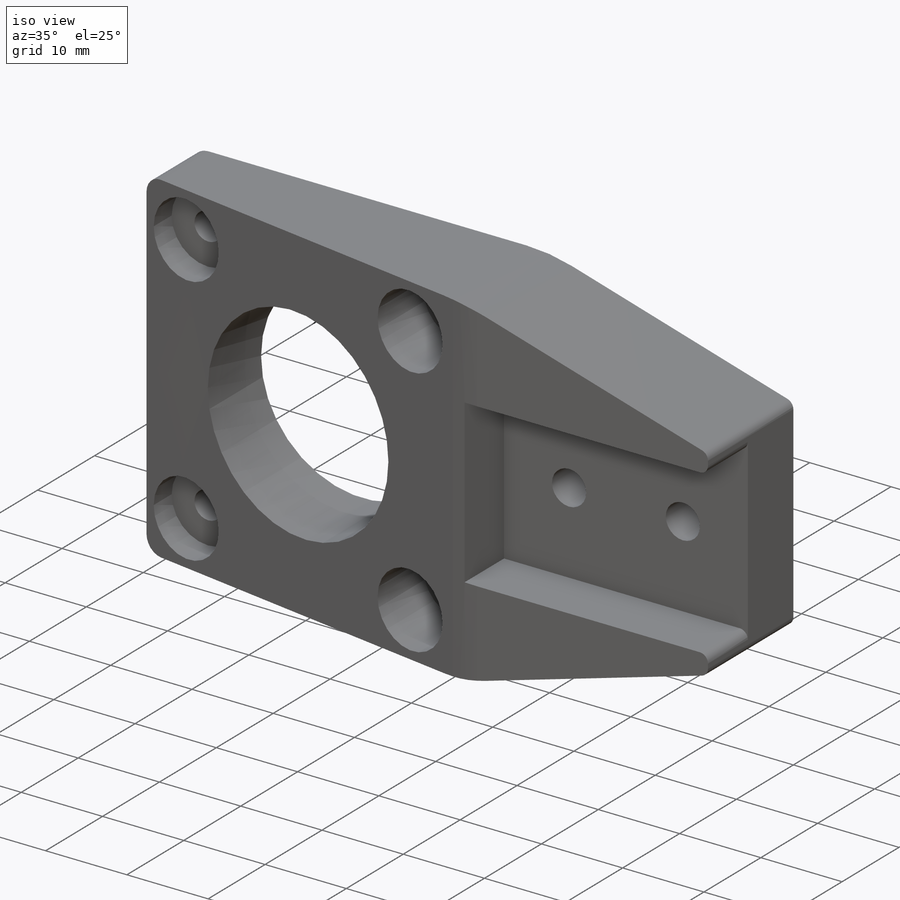
[diagram: iso view]
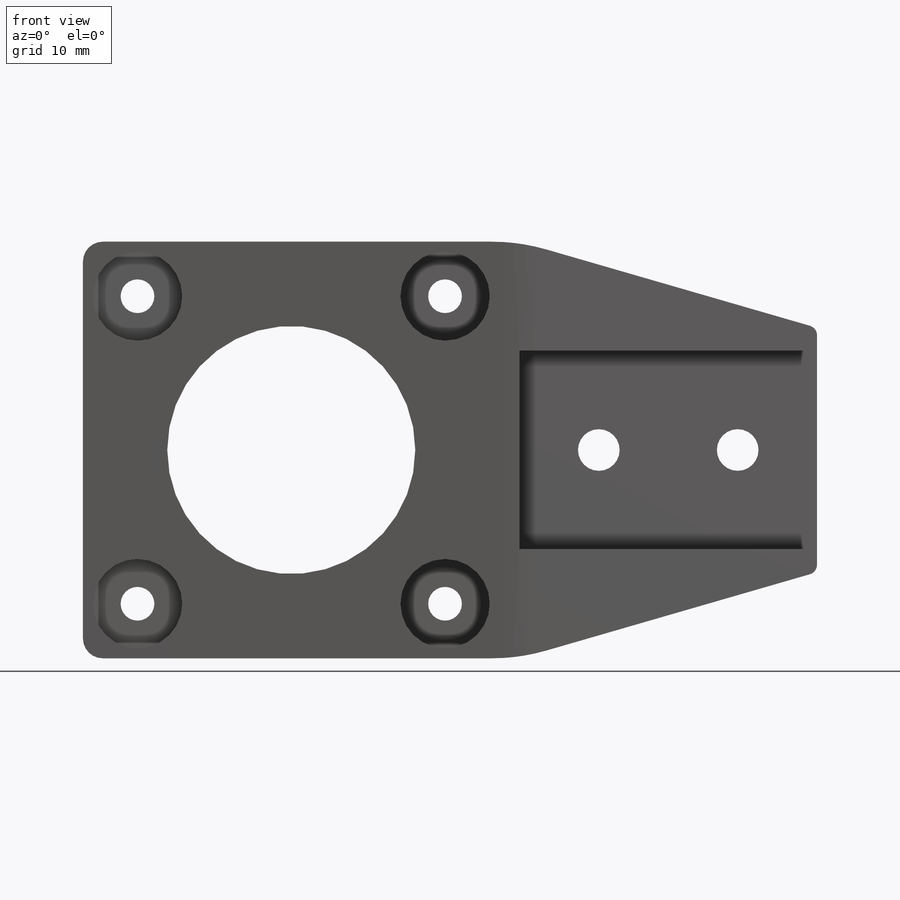
[diagram: front view]
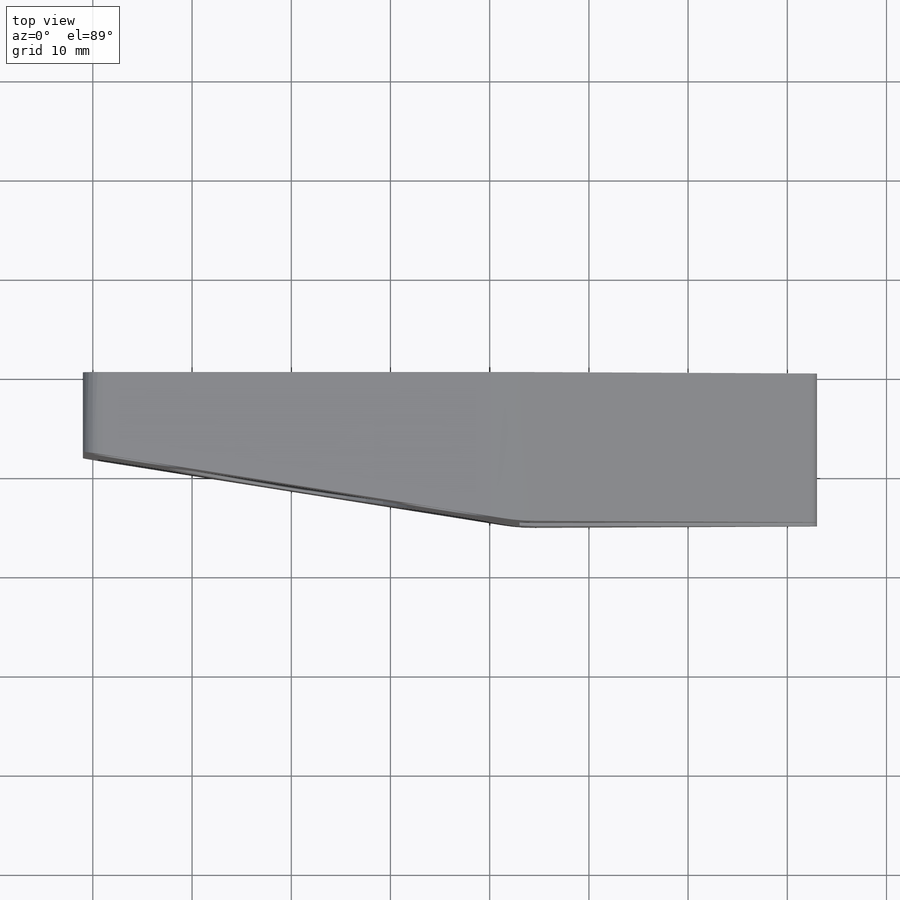
[diagram: top view]
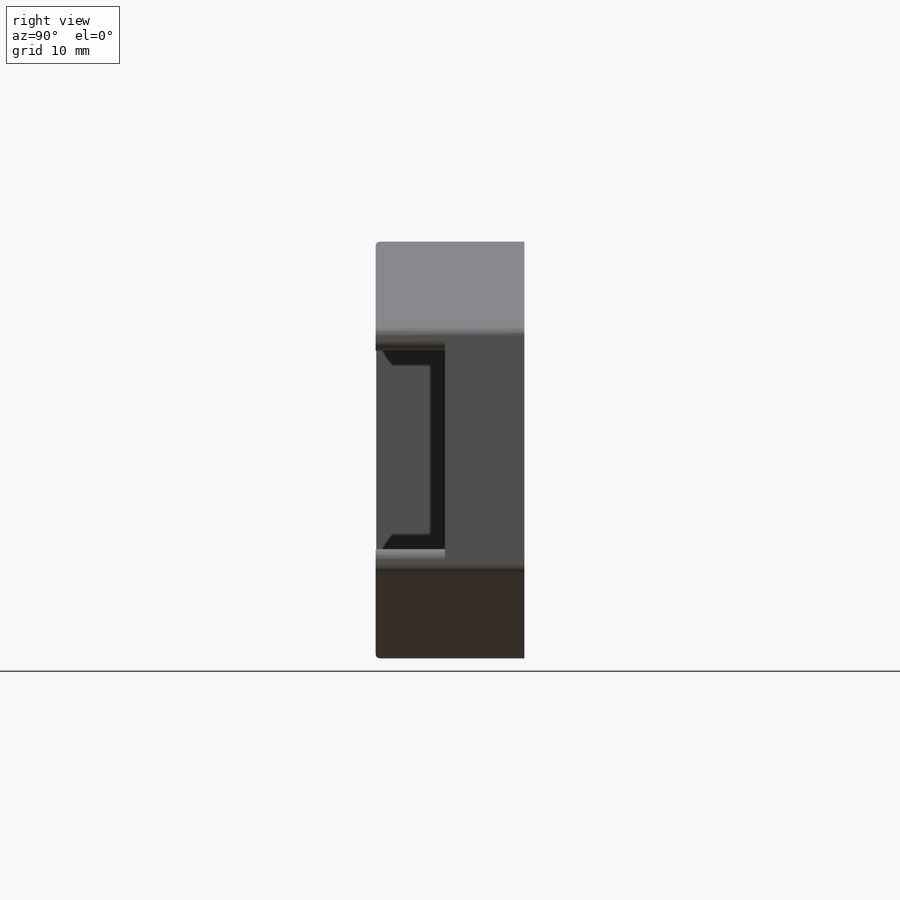
[diagram: right view]
SOLIDWORKS PART (.sldprt)
format: sldprt  version: not decoded by parser v0  size: 342,528 bytes
history: native  units: mm
features: sketch x9, cut_extrude x7, plane x3, fillet x3, extrude x2, material x1, chamfer x1 (+8 scaffold rows collapsed)
feature tree (34):
  scaffold x8  (default folders/planes/origin — collapsed)
  material  "Material <not specified>"
  plane  "Plan de face"
  plane  "Plan de dessus"
  plane  "Plan de droite"
  sketch  "Esquisse1"  dims[D1=42.0mm D2=62.0mm D3=31.0mm D4=21.0mm]
  extrude  "Boss.-Extru.1"  Depth=15mm
  sketch  "Esquisse2"  dims[D1=4.2mm D2=4.2mm D7=25.0mm D10=3.4mm D11=3.4mm D12=3.4mm D13=3.4mm D3=10.0mm D4=10.0mm D5=10.0mm D6=10.0mm D8=21.0mm D9=21.0mm D14=5.5mm D15=5.5mm D16=5.5mm D17=5.5mm D18=5.5mm D19=5.5mm D20=31.0mm D21=31.0mm]
  cut_extrude  "Enlèv. mat.-Extru.1"  [1 undecoded]
  sketch  "Esquisse4"  dims[D1=9.0mm]
  cut_extrude  "Enlèv. mat.-Extru.2"  Depth=10mm
  sketch  "Sketch1"  dims[D1=42.0mm]
  cut_extrude  "Cut-Extrude1"  [1 undecoded]
  sketch  "Sketch2"
  extrude  "Boss-Extrude1"  Depth=40mm
  sketch  "Sketch6"  dims[D1=7.0mm D2=44.0mm]
  cut_extrude  "Cut-Extrude2"  [1 undecoded]
  sketch  "Sketch7"  dims[D1=20.0mm D2=11.0mm]
  cut_extrude  "Cut-Extrude3"  Depth=7mm
  sketch  "Sketch9"  dims[D1=4.2mm D2=4.2mm D3=14.0mm D4=8.0mm D5=10.0mm D6=10.0mm]
  cut_extrude  "Cut-Extrude4"  [1 undecoded]
  chamfer  "Chamfer1"  Distance=38mm
  sketch  "Sketch10"  dims[D1=8.0mm]
  cut_extrude  "Cut-Extrude5"  [1 undecoded]
  fillet  "Fillet2"  Radius=20mm
  fillet  "Fillet4"  Radius=2mm
  fillet  "Fillet5"  Radius=1mm
decode coverage: 16 of 22 modeling features carry decoded parameters
note: 5 parameter values undecoded
summary: no parameter record found for 5 features
note: suppression state not decoded; provenance and decode notes live in map.json
